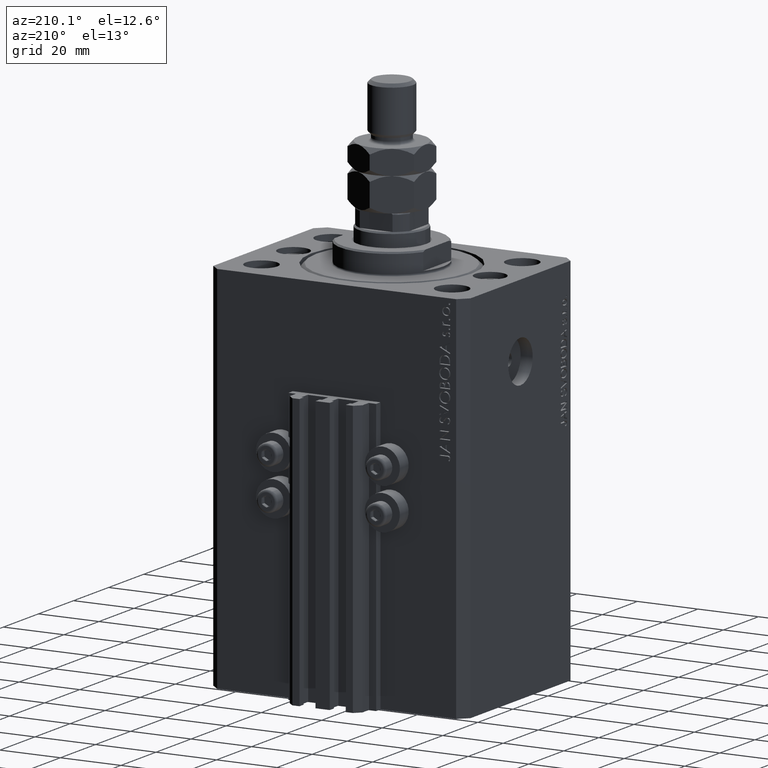
[diagram: clean part render]
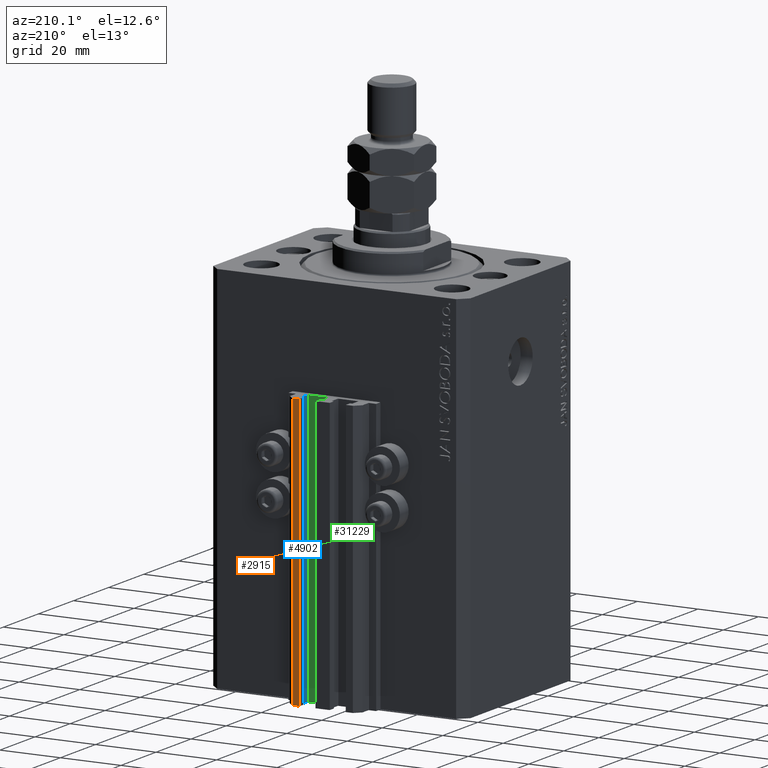
[diagram: same view with three faces highlighted in distinct colors, each labeled with its STEP entity id]
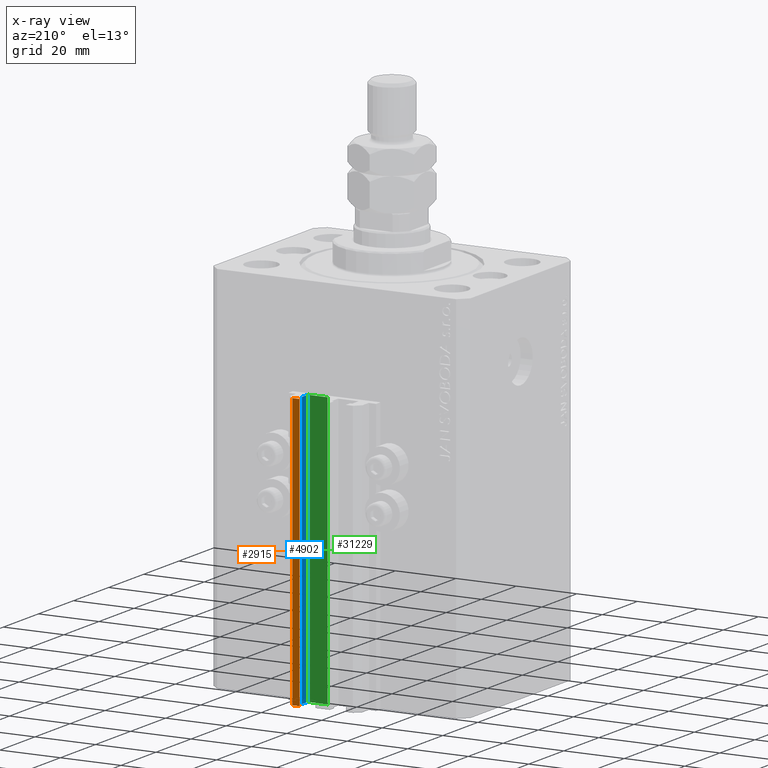
[diagram: x-ray of the same camera — body ghosted, the three highlighted faces saturated]
A machine part, auxiliary view with three faces highlighted in distinct colors.
The next image is the same camera in x-ray (body ghosted, the three faces saturated) — at least one of them is partly hidden behind the body in this view.
Their STEP definitions:

[orange] entity #2915 — the highlighted planar face has unit normal (0, 1, 0).
#2417 = AXIS2_PLACEMENT_3D ( 'NONE', #26639, #35002, #7895 ) ;
#2915 = ADVANCED_FACE ( 'NONE', ( #8625 ), #41682, .T. ) ;
#4042 = CARTESIAN_POINT ( 'NONE',  ( 7.649999999999998579, 39.50000000000002132, -123.0000000000000000 ) ) ;
#4531 = DIRECTION ( 'NONE',  ( 0.000000000000000000, 0.000000000000000000, 1.000000000000000000 ) ) ;
#4648 = VERTEX_POINT ( 'NONE', #47219 ) ;
#7895 = DIRECTION ( 'NONE',  ( 0.000000000000000000, 0.000000000000000000, 1.000000000000000000 ) ) ;
#8625 = FACE_OUTER_BOUND ( 'NONE', #47259, .T. ) ;
#8696 = EDGE_CURVE ( 'NONE', #48795, #8800, #18873, .T. ) ;
#8720 = VECTOR ( 'NONE', #4531, 1000.000000000000000 ) ;
#8800 = VERTEX_POINT ( 'NONE', #13181 ) ;
#10226 = VECTOR ( 'NONE', #45463, 1000.000000000000000 ) ;
#10502 = CARTESIAN_POINT ( 'NONE',  ( 9.999999999999998224, 39.50000000000002132, -123.0000000000000000 ) ) ;
#11905 = EDGE_CURVE ( 'NONE', #48795, #4648, #26270, .T. ) ;
#11950 = CARTESIAN_POINT ( 'NONE',  ( 9.999999999999998224, 39.50000000000002132, -33.00000000000000000 ) ) ;
#13181 = CARTESIAN_POINT ( 'NONE',  ( 9.999999999999998224, 39.50000000000002132, -33.00000000000000000 ) ) ;
#18873 = LINE ( 'NONE', #10502, #24224 ) ;
#19521 = EDGE_CURVE ( 'NONE', #8800, #44056, #22556, .T. ) ;
#21372 = ORIENTED_EDGE ( 'NONE', *, *, #23022, .T. ) ;
#22385 = ORIENTED_EDGE ( 'NONE', *, *, #19521, .F. ) ;
#22556 = LINE ( 'NONE', #11950, #10226 ) ;
#22582 = DIRECTION ( 'NONE',  ( -1.000000000000000000, 0.000000000000000000, 0.000000000000000000 ) ) ;
#23022 = EDGE_CURVE ( 'NONE', #4648, #44056, #29953, .T. ) ;
#24224 = VECTOR ( 'NONE', #26257, 1000.000000000000000 ) ;
#25906 = CARTESIAN_POINT ( 'NONE',  ( 7.649999999999998579, 39.50000000000002132, -33.00000000000000000 ) ) ;
#26257 = DIRECTION ( 'NONE',  ( 0.000000000000000000, 0.000000000000000000, 1.000000000000000000 ) ) ;
#26270 = LINE ( 'NONE', #26751, #43974 ) ;
#26639 = CARTESIAN_POINT ( 'NONE',  ( 9.999999999999998224, 39.50000000000002132, -123.0000000000000000 ) ) ;
#26751 = CARTESIAN_POINT ( 'NONE',  ( 9.999999999999998224, 39.50000000000002132, -123.0000000000000000 ) ) ;
#29953 = LINE ( 'NONE', #4042, #8720 ) ;
#32401 = CARTESIAN_POINT ( 'NONE',  ( 9.999999999999998224, 39.50000000000002132, -123.0000000000000000 ) ) ;
#35002 = DIRECTION ( 'NONE',  ( 0.000000000000000000, 1.000000000000000000, -0.000000000000000000 ) ) ;
#35979 = ORIENTED_EDGE ( 'NONE', *, *, #11905, .T. ) ;
#40113 = ORIENTED_EDGE ( 'NONE', *, *, #8696, .F. ) ;
#41682 = PLANE ( 'NONE',  #2417 ) ;
#43974 = VECTOR ( 'NONE', #22582, 1000.000000000000000 ) ;
#44056 = VERTEX_POINT ( 'NONE', #25906 ) ;
#45463 = DIRECTION ( 'NONE',  ( -1.000000000000000000, 0.000000000000000000, 0.000000000000000000 ) ) ;
#47219 = CARTESIAN_POINT ( 'NONE',  ( 7.649999999999998579, 39.50000000000002132, -123.0000000000000000 ) ) ;
#47259 = EDGE_LOOP ( 'NONE', ( #22385, #40113, #35979, #21372 ) ) ;
#48795 = VERTEX_POINT ( 'NONE', #32401 ) ;

[blue] entity #4902 — the highlighted planar face has unit normal (-1, 0, 0).
#160 = CARTESIAN_POINT ( 'NONE',  ( 8.400000000000003908, 36.90000000000001279, -123.0000000000000000 ) ) ;
#1041 = PLANE ( 'NONE',  #29339 ) ;
#2432 = ORIENTED_EDGE ( 'NONE', *, *, #44316, .T. ) ;
#4300 = CARTESIAN_POINT ( 'NONE',  ( 8.400000000000000355, 33.70000000000000995, -33.00000000000000000 ) ) ;
#4902 = ADVANCED_FACE ( 'NONE', ( #31138 ), #1041, .T. ) ;
#7080 = VERTEX_POINT ( 'NONE', #32886 ) ;
#8944 = CARTESIAN_POINT ( 'NONE',  ( 8.400000000000000355, 36.90000000000001279, -123.0000000000000000 ) ) ;
#9431 = DIRECTION ( 'NONE',  ( -5.421010862427509351E-16, -1.000000000000000000, 0.000000000000000000 ) ) ;
#9514 = VERTEX_POINT ( 'NONE', #160 ) ;
#9700 = DIRECTION ( 'NONE',  ( -5.421010862427508365E-16, -1.000000000000000000, 0.000000000000000000 ) ) ;
#10101 = VECTOR ( 'NONE', #9700, 1000.000000000000000 ) ;
#11123 = CARTESIAN_POINT ( 'NONE',  ( 8.400000000000003908, 36.90000000000001279, -123.0000000000000000 ) ) ;
#11183 = EDGE_LOOP ( 'NONE', ( #16830, #28114, #2432, #46269 ) ) ;
#14801 = EDGE_CURVE ( 'NONE', #39390, #38373, #37999, .T. ) ;
#16620 = DIRECTION ( 'NONE',  ( -1.000000000000000000, 5.421010862427509351E-16, 0.000000000000000000 ) ) ;
#16830 = ORIENTED_EDGE ( 'NONE', *, *, #14801, .F. ) ;
#17046 = LINE ( 'NONE', #47091, #27879 ) ;
#18098 = CARTESIAN_POINT ( 'NONE',  ( 8.400000000000003908, 36.90000000000001279, -33.00000000000000000 ) ) ;
#25041 = VECTOR ( 'NONE', #45125, 1000.000000000000000 ) ;
#25902 = LINE ( 'NONE', #30077, #10101 ) ;
#27879 = VECTOR ( 'NONE', #46605, 1000.000000000000000 ) ;
#28067 = DIRECTION ( 'NONE',  ( -5.421010862427508365E-16, -1.000000000000000000, 0.000000000000000000 ) ) ;
#28114 = ORIENTED_EDGE ( 'NONE', *, *, #44315, .F. ) ;
#29339 = AXIS2_PLACEMENT_3D ( 'NONE', #8944, #16620, #9431 ) ;
#30077 = CARTESIAN_POINT ( 'NONE',  ( 8.400000000000000355, 36.90000000000001279, -123.0000000000000000 ) ) ;
#31138 = FACE_OUTER_BOUND ( 'NONE', #11183, .T. ) ;
#32886 = CARTESIAN_POINT ( 'NONE',  ( 8.400000000000000355, 33.70000000000000995, -123.0000000000000000 ) ) ;
#33818 = VECTOR ( 'NONE', #28067, 1000.000000000000000 ) ;
#34124 = EDGE_CURVE ( 'NONE', #7080, #38373, #17046, .T. ) ;
#37999 = LINE ( 'NONE', #47037, #33818 ) ;
#38373 = VERTEX_POINT ( 'NONE', #4300 ) ;
#39390 = VERTEX_POINT ( 'NONE', #18098 ) ;
#44315 = EDGE_CURVE ( 'NONE', #9514, #39390, #48822, .T. ) ;
#44316 = EDGE_CURVE ( 'NONE', #9514, #7080, #25902, .T. ) ;
#45125 = DIRECTION ( 'NONE',  ( 0.000000000000000000, 0.000000000000000000, 1.000000000000000000 ) ) ;
#46269 = ORIENTED_EDGE ( 'NONE', *, *, #34124, .T. ) ;
#46605 = DIRECTION ( 'NONE',  ( 0.000000000000000000, 0.000000000000000000, 1.000000000000000000 ) ) ;
#47037 = CARTESIAN_POINT ( 'NONE',  ( 8.400000000000000355, 36.90000000000001279, -33.00000000000000000 ) ) ;
#47091 = CARTESIAN_POINT ( 'NONE',  ( 8.400000000000000355, 33.70000000000000995, -123.0000000000000000 ) ) ;
#48822 = LINE ( 'NONE', #11123, #25041 ) ;

[green] entity #31229 — the highlighted planar face has unit normal (0, 1, 0).
#1670 = CARTESIAN_POINT ( 'NONE',  ( 1.800000000000000933, 33.50000000000000000, -123.0000000000000000 ) ) ;
#5618 = LINE ( 'NONE', #1670, #30324 ) ;
#6161 = VECTOR ( 'NONE', #41590, 1000.000000000000000 ) ;
#7326 = LINE ( 'NONE', #33215, #6161 ) ;
#7677 = VERTEX_POINT ( 'NONE', #17522 ) ;
#7937 = ORIENTED_EDGE ( 'NONE', *, *, #48446, .F. ) ;
#8154 = VECTOR ( 'NONE', #36591, 1000.000000000000000 ) ;
#10010 = FACE_OUTER_BOUND ( 'NONE', #26147, .T. ) ;
#10785 = CARTESIAN_POINT ( 'NONE',  ( 8.199999999999999289, 33.50000000000000000, -33.00000000000000000 ) ) ;
#11400 = EDGE_CURVE ( 'NONE', #20272, #7677, #7326, .T. ) ;
#11567 = LINE ( 'NONE', #23129, #25481 ) ;
#11845 = VERTEX_POINT ( 'NONE', #40820 ) ;
#14226 = PLANE ( 'NONE',  #36538 ) ;
#17522 = CARTESIAN_POINT ( 'NONE',  ( 1.800000000000000933, 33.50000000000000000, -123.0000000000000000 ) ) ;
#17678 = DIRECTION ( 'NONE',  ( 0.000000000000000000, 1.000000000000000000, -0.000000000000000000 ) ) ;
#17882 = LINE ( 'NONE', #21570, #8154 ) ;
#18744 = ORIENTED_EDGE ( 'NONE', *, *, #29580, .F. ) ;
#20272 = VERTEX_POINT ( 'NONE', #40918 ) ;
#21570 = CARTESIAN_POINT ( 'NONE',  ( 8.199999999999999289, 33.50000000000000000, -123.0000000000000000 ) ) ;
#23129 = CARTESIAN_POINT ( 'NONE',  ( 8.199999999999999289, 33.50000000000000000, -33.00000000000000000 ) ) ;
#25481 = VECTOR ( 'NONE', #42848, 1000.000000000000000 ) ;
#25536 = DIRECTION ( 'NONE',  ( 0.000000000000000000, 0.000000000000000000, 1.000000000000000000 ) ) ;
#26147 = EDGE_LOOP ( 'NONE', ( #7937, #18744, #40645, #34793 ) ) ;
#28554 = DIRECTION ( 'NONE',  ( 0.000000000000000000, 0.000000000000000000, 1.000000000000000000 ) ) ;
#29580 = EDGE_CURVE ( 'NONE', #20272, #46821, #17882, .T. ) ;
#30324 = VECTOR ( 'NONE', #28554, 1000.000000000000000 ) ;
#31229 = ADVANCED_FACE ( 'NONE', ( #10010 ), #14226, .T. ) ;
#33215 = CARTESIAN_POINT ( 'NONE',  ( 8.199999999999999289, 33.50000000000000000, -123.0000000000000000 ) ) ;
#34793 = ORIENTED_EDGE ( 'NONE', *, *, #36855, .T. ) ;
#36538 = AXIS2_PLACEMENT_3D ( 'NONE', #47484, #17678, #25536 ) ;
#36591 = DIRECTION ( 'NONE',  ( 0.000000000000000000, 0.000000000000000000, 1.000000000000000000 ) ) ;
#36855 = EDGE_CURVE ( 'NONE', #7677, #11845, #5618, .T. ) ;
#40645 = ORIENTED_EDGE ( 'NONE', *, *, #11400, .T. ) ;
#40820 = CARTESIAN_POINT ( 'NONE',  ( 1.800000000000000933, 33.50000000000000000, -33.00000000000000000 ) ) ;
#40918 = CARTESIAN_POINT ( 'NONE',  ( 8.199999999999999289, 33.50000000000000000, -123.0000000000000000 ) ) ;
#41590 = DIRECTION ( 'NONE',  ( -1.000000000000000000, 0.000000000000000000, 0.000000000000000000 ) ) ;
#42848 = DIRECTION ( 'NONE',  ( -1.000000000000000000, 0.000000000000000000, 0.000000000000000000 ) ) ;
#46821 = VERTEX_POINT ( 'NONE', #10785 ) ;
#47484 = CARTESIAN_POINT ( 'NONE',  ( 8.199999999999999289, 33.50000000000000000, -123.0000000000000000 ) ) ;
#48446 = EDGE_CURVE ( 'NONE', #46821, #11845, #11567, .T. ) ;